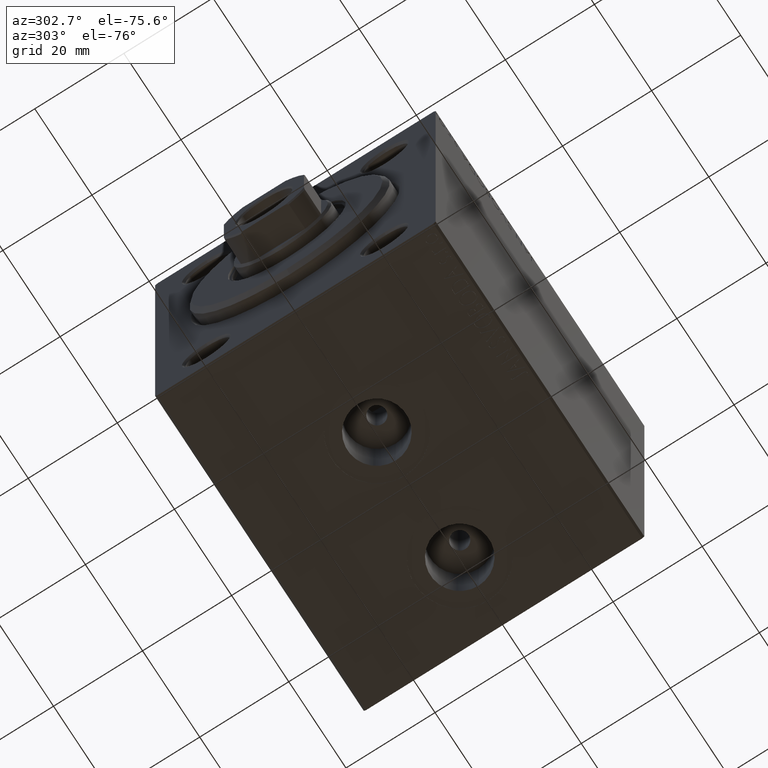
[diagram: clean part render]
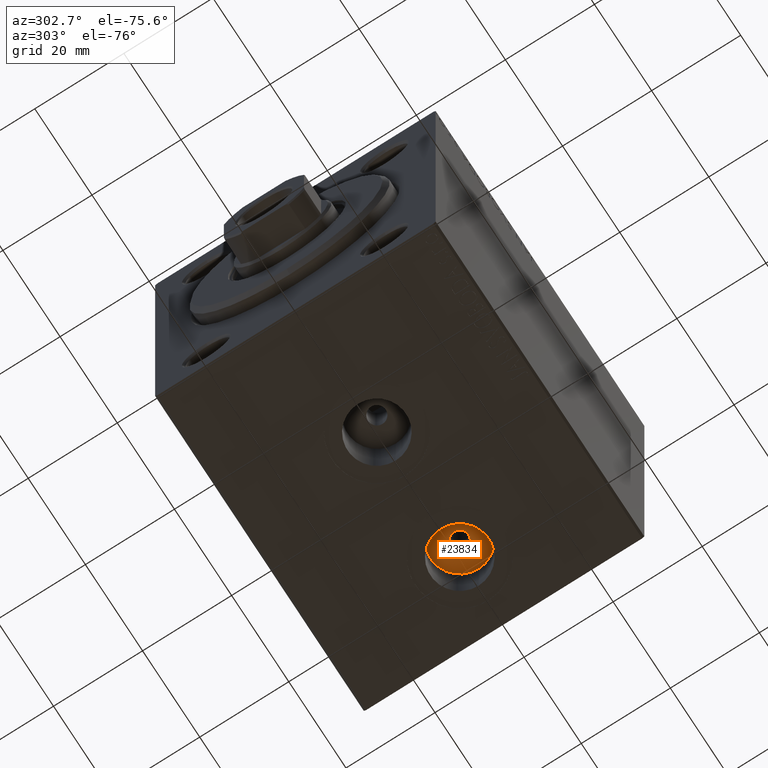
[diagram: same view with one face highlighted and labeled with its STEP entity id]
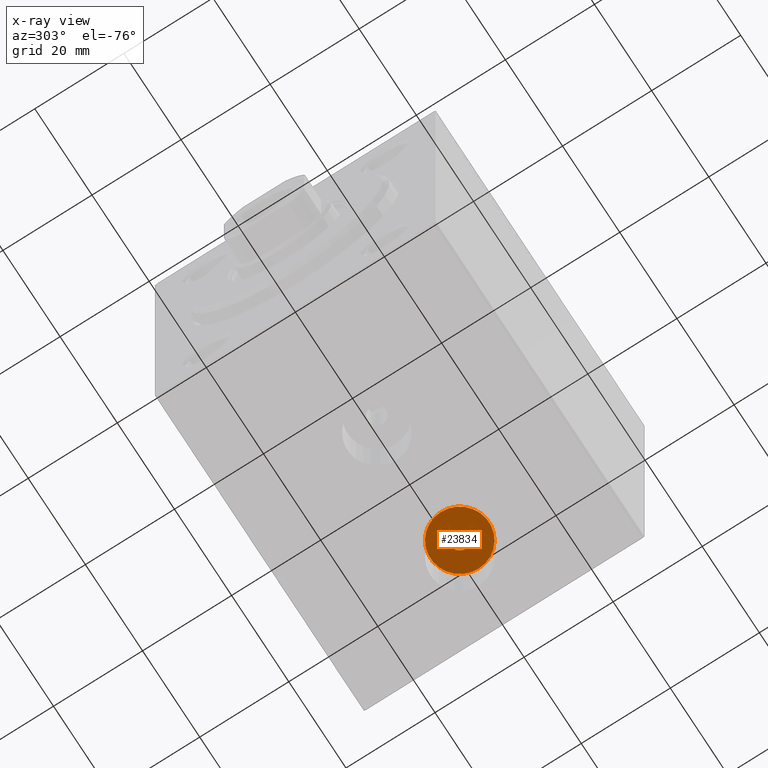
[diagram: x-ray of the same camera — body ghosted, the highlighted face saturated]
A machine part, auxiliary view. The second image highlights one B-rep face of the part: STEP entity #23834.
The next image is the same camera in x-ray: the body ghosted, the highlighted face saturated — about 0% of this face is hidden behind the body in this view.
In plain terms, the highlighted planar face has unit normal (0, 0, -1).
Its self-contained STEP definition (entity closure, byte-faithful):
#1164 = DIRECTION ( 'NONE',  ( 0.000000000000000000, 0.000000000000000000, -1.000000000000000000 ) ) ;
#1826 = VERTEX_POINT ( 'NONE', #34882 ) ;
#2829 = FACE_BOUND ( 'NONE', #6825, .T. ) ;
#3823 = ORIENTED_EDGE ( 'NONE', *, *, #8439, .T. ) ;
#5810 = DIRECTION ( 'NONE',  ( -1.000000000000000000, 0.000000000000000000, -0.000000000000000000 ) ) ;
#6326 = DIRECTION ( 'NONE',  ( 0.000000000000000000, 0.000000000000000000, -1.000000000000000000 ) ) ;
#6825 = EDGE_LOOP ( 'NONE', ( #25220, #36297 ) ) ;
#8439 = EDGE_CURVE ( 'NONE', #1826, #28442, #8634, .T. ) ;
#8634 = CIRCLE ( 'NONE', #35776, 6.580000000000002736 ) ;
#9795 = CARTESIAN_POINT ( 'NONE',  ( 57.49999999999999289, -7.523326685254106813E-15, -29.50000000000000711 ) ) ;
#12079 = PLANE ( 'NONE',  #25087 ) ;
#14167 = DIRECTION ( 'NONE',  ( -1.000000000000000000, 0.000000000000000000, 0.000000000000000000 ) ) ;
#16827 = CARTESIAN_POINT ( 'NONE',  ( 0.000000000000000000, 0.000000000000000000, -29.50000000000000711 ) ) ;
#16884 = CARTESIAN_POINT ( 'NONE',  ( 50.91999999999999460, -7.523326685254106813E-15, -29.50000000000000711 ) ) ;
#17191 = EDGE_CURVE ( 'NONE', #31028, #27695, #23438, .T. ) ;
#17865 = EDGE_LOOP ( 'NONE', ( #23571, #3823 ) ) ;
#21252 = DIRECTION ( 'NONE',  ( 0.000000000000000000, 0.000000000000000000, -1.000000000000000000 ) ) ;
#21414 = CIRCLE ( 'NONE', #33143, 2.000000000000001776 ) ;
#22526 = DIRECTION ( 'NONE',  ( -1.000000000000000000, 0.000000000000000000, 0.000000000000000000 ) ) ;
#23438 = CIRCLE ( 'NONE', #32975, 2.000000000000001776 ) ;
#23571 = ORIENTED_EDGE ( 'NONE', *, *, #28024, .T. ) ;
#23834 = ADVANCED_FACE ( 'NONE', ( #2829, #43562 ), #12079, .T. ) ;
#24496 = DIRECTION ( 'NONE',  ( -1.000000000000000000, 0.000000000000000000, 0.000000000000000000 ) ) ;
#25087 = AXIS2_PLACEMENT_3D ( 'NONE', #16827, #44842, #5810 ) ;
#25220 = ORIENTED_EDGE ( 'NONE', *, *, #17191, .F. ) ;
#25507 = CARTESIAN_POINT ( 'NONE',  ( 57.49999999999999289, -7.523326685254106813E-15, -29.50000000000000711 ) ) ;
#25941 = CIRCLE ( 'NONE', #28826, 6.580000000000002736 ) ;
#27695 = VERTEX_POINT ( 'NONE', #40229 ) ;
#27973 = DIRECTION ( 'NONE',  ( 0.000000000000000000, 0.000000000000000000, -1.000000000000000000 ) ) ;
#28024 = EDGE_CURVE ( 'NONE', #28442, #1826, #25941, .T. ) ;
#28442 = VERTEX_POINT ( 'NONE', #16884 ) ;
#28826 = AXIS2_PLACEMENT_3D ( 'NONE', #31196, #27973, #14167 ) ;
#31028 = VERTEX_POINT ( 'NONE', #31128 ) ;
#31128 = CARTESIAN_POINT ( 'NONE',  ( 55.49999999999999289, -7.523326685254106813E-15, -29.50000000000000711 ) ) ;
#31196 = CARTESIAN_POINT ( 'NONE',  ( 57.49999999999999289, -7.523326685254106813E-15, -29.50000000000000711 ) ) ;
#32975 = AXIS2_PLACEMENT_3D ( 'NONE', #45151, #21252, #24496 ) ;
#33143 = AXIS2_PLACEMENT_3D ( 'NONE', #25507, #1164, #22526 ) ;
#34360 = DIRECTION ( 'NONE',  ( -1.000000000000000000, 0.000000000000000000, 0.000000000000000000 ) ) ;
#34882 = CARTESIAN_POINT ( 'NONE',  ( 64.07999999999999829, -6.717509091415147771E-15, -29.50000000000000711 ) ) ;
#35776 = AXIS2_PLACEMENT_3D ( 'NONE', #9795, #6326, #34360 ) ;
#36297 = ORIENTED_EDGE ( 'NONE', *, *, #39272, .F. ) ;
#39272 = EDGE_CURVE ( 'NONE', #27695, #31028, #21414, .T. ) ;
#40229 = CARTESIAN_POINT ( 'NONE',  ( 59.50000000000000000, -7.278397325424634938E-15, -29.50000000000000711 ) ) ;
#43562 = FACE_OUTER_BOUND ( 'NONE', #17865, .T. ) ;
#44842 = DIRECTION ( 'NONE',  ( 0.000000000000000000, 0.000000000000000000, -1.000000000000000000 ) ) ;
#45151 = CARTESIAN_POINT ( 'NONE',  ( 57.49999999999999289, -7.523326685254106813E-15, -29.50000000000000711 ) ) ;